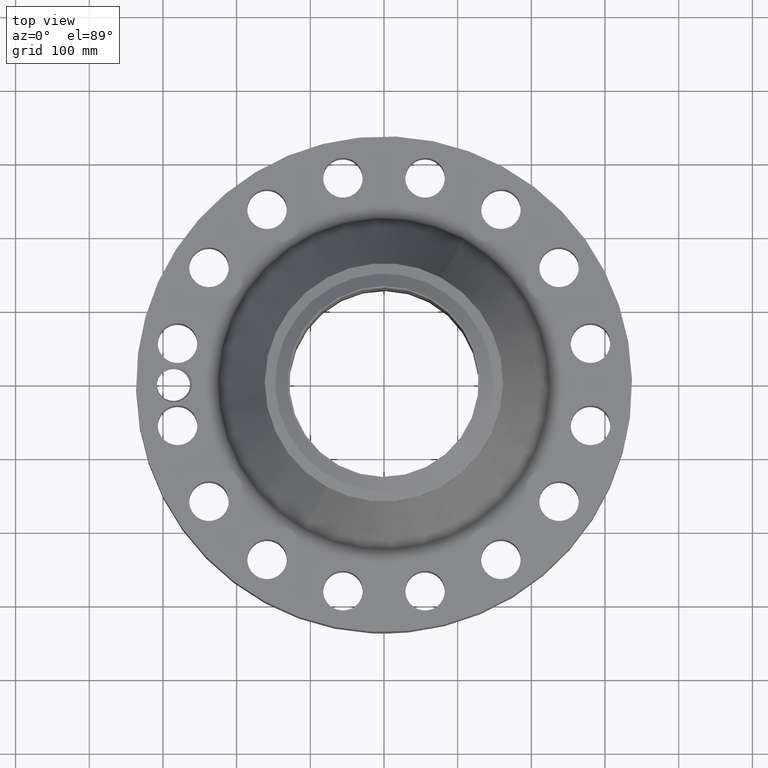
[diagram: clean part render]
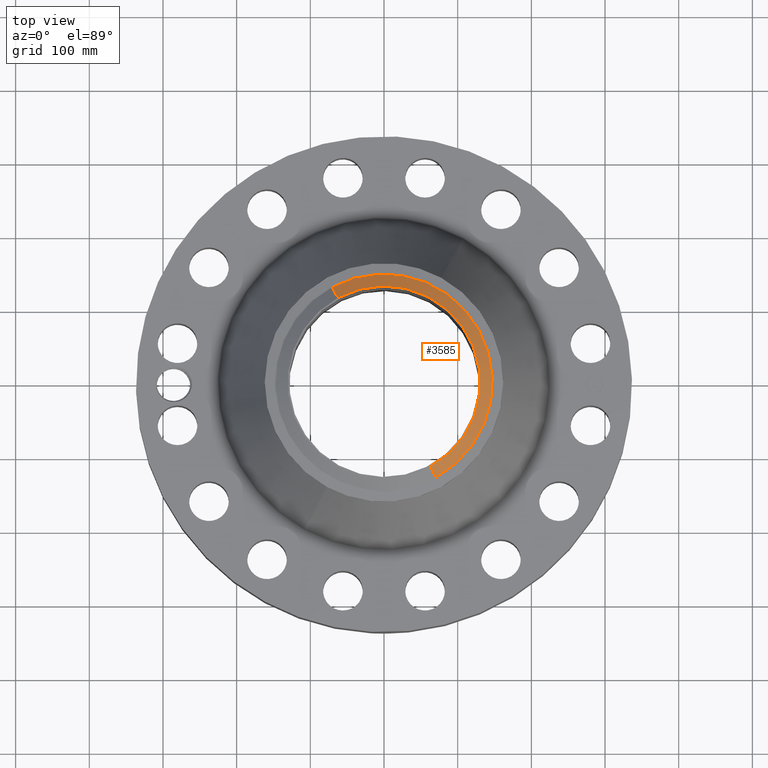
[diagram: same view with one face highlighted and labeled with its STEP entity id]
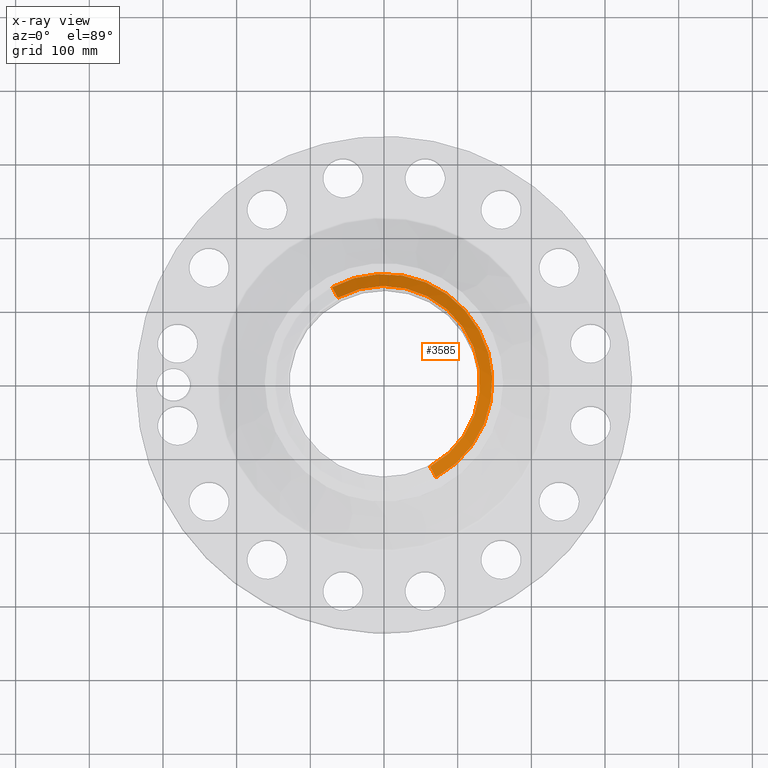
[diagram: x-ray of the same camera — body ghosted, the highlighted face saturated]
A machine part, top view. The second image highlights one B-rep face of the part: STEP entity #3585.
The next image is the same camera in x-ray: the body ghosted, the highlighted face saturated — about 0% of this face is hidden behind the body in this view.
In plain terms, the highlighted conical surface has half-angle 52.5 deg.
Its self-contained STEP definition (entity closure, byte-faithful):
#2701=AXIS2_PLACEMENT_3D('Circle Axis2P3D',#2699,#2700,$) ;
#3546=AXIS2_PLACEMENT_3D('Cone Axis2P3D',#3543,#3544,#3545) ;
#3576=AXIS2_PLACEMENT_3D('Circle Axis2P3D',#3574,#3575,$) ;
#2699=CARTESIAN_POINT('Axis2P3D Location',(0.,0.,11.37)) ;
#2703=CARTESIAN_POINT('Vertex',(2.46508154437,-4.51230149999,11.37)) ;
#2705=CARTESIAN_POINT('Vertex',(-2.46508154437,4.51230149999,11.37)) ;
#3543=CARTESIAN_POINT('Axis2P3D Location',(0.,0.,11.37)) ;
#3548=CARTESIAN_POINT('Line Origine',(-2.62002284692,4.7959196519,11.1220143726)) ;
#3552=CARTESIAN_POINT('Vertex',(-2.77496414947,5.0795378038,10.8740287452)) ;
#3559=CARTESIAN_POINT('Vertex',(2.77496414947,-5.0795378038,10.8740287452)) ;
#3562=CARTESIAN_POINT('Line Origine',(2.62002284692,-4.7959196519,11.1220143726)) ;
#3574=CARTESIAN_POINT('Axis2P3D Location',(0.,0.,10.8740287452)) ;
#2700=DIRECTION('Axis2P3D Direction',(0.,0.,-0.0393700787402)) ;
#3544=DIRECTION('Axis2P3D Direction',(-0.,-0.,-0.0393700787402)) ;
#3545=DIRECTION('Axis2P3D XDirection',(-0.0188750212049,0.0345504945626,0.)) ;
#3549=DIRECTION('Vector Direction',(-0.014974561121,0.02741075027,-0.023966985394)) ;
#3563=DIRECTION('Vector Direction',(0.014974561121,-0.02741075027,-0.023966985394)) ;
#3575=DIRECTION('Axis2P3D Direction',(0.,0.,-0.0393700787402)) ;
#3550=VECTOR('Line Direction',#3549,0.0393700787402) ;
#3564=VECTOR('Line Direction',#3563,0.0393700787402) ;
#3580=ORIENTED_EDGE('',*,*,#2707,.F.) ;
#3581=ORIENTED_EDGE('',*,*,#3566,.T.) ;
#3582=ORIENTED_EDGE('',*,*,#3578,.T.) ;
#3583=ORIENTED_EDGE('',*,*,#3554,.F.) ;
#3585=ADVANCED_FACE('PartBody',(#3584),#3547,.T.) ;
#2702=CIRCLE('generated circle',#2701,5.1417401575) ;
#3577=CIRCLE('generated circle',#3576,5.78810248105) ;
#3547=CONICAL_SURFACE('Cone',#3546,5.1417401575,0.916297857297) ;
#2707=EDGE_CURVE('',#2704,#2706,#2702,.F.) ;
#3554=EDGE_CURVE('',#2706,#3553,#3551,.T.) ;
#3566=EDGE_CURVE('',#2704,#3560,#3565,.T.) ;
#3578=EDGE_CURVE('',#3560,#3553,#3577,.F.) ;
#3579=EDGE_LOOP('',(#3580,#3581,#3582,#3583)) ;
#3584=FACE_OUTER_BOUND('',#3579,.T.) ;
#3551=LINE('Line',#3548,#3550) ;
#3565=LINE('Line',#3562,#3564) ;
#2704=VERTEX_POINT('',#2703) ;
#2706=VERTEX_POINT('',#2705) ;
#3553=VERTEX_POINT('',#3552) ;
#3560=VERTEX_POINT('',#3559) ;